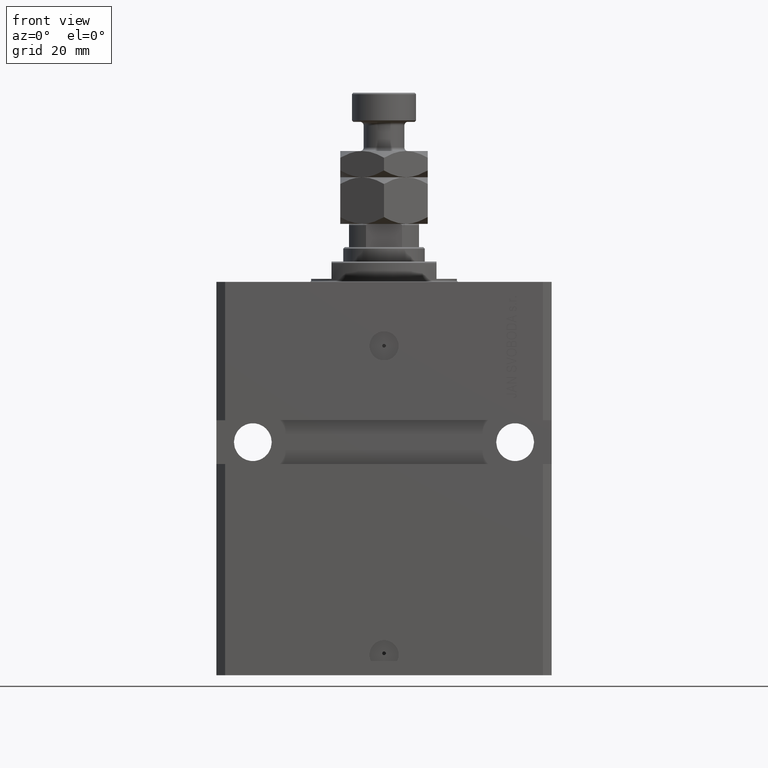
[diagram: clean part render]
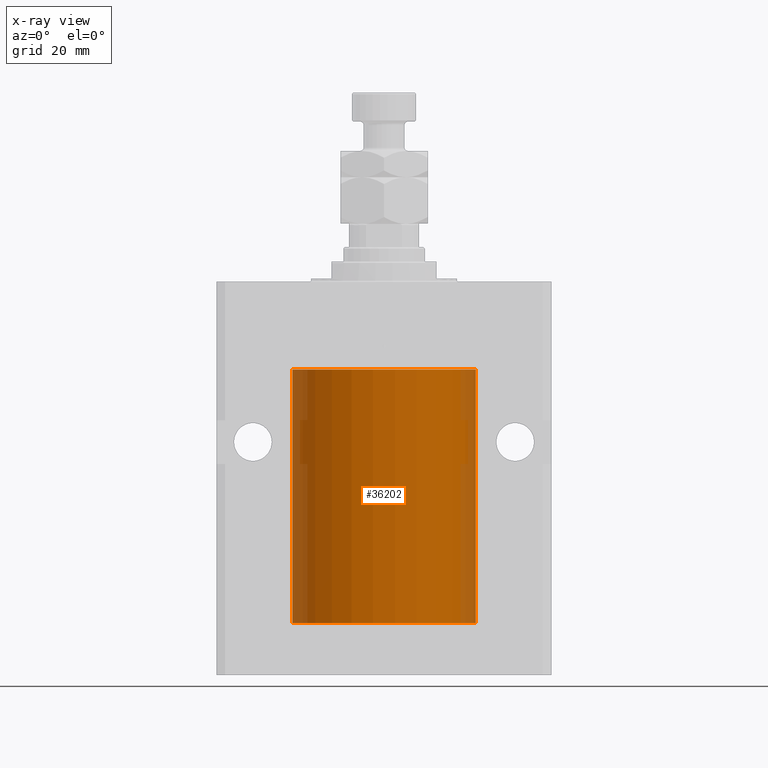
[diagram: x-ray — body ghosted, one internal face saturated and labeled with its STEP entity id]
A machine part, front view, then the same camera in x-ray: the body is ghosted and one INTERNAL B-rep face — a face not visible from any outside direction — is saturated and labeled: STEP entity #36202.
In plain terms, the highlighted cylindrical surface (partial cylindrical patch) has radius 31.5 mm, axis along (0, 0, 1).
Its self-contained STEP definition (entity closure, byte-faithful):
#95 = ORIENTED_EDGE ( 'NONE', *, *, #37725, .F. ) ;
#855 = ORIENTED_EDGE ( 'NONE', *, *, #18791, .T. ) ;
#1590 = FACE_OUTER_BOUND ( 'NONE', #24183, .T. ) ;
#2655 = VERTEX_POINT ( 'NONE', #16395 ) ;
#2991 = DIRECTION ( 'NONE',  ( 1.000000000000000000, 0.000000000000000000, 0.000000000000000000 ) ) ;
#3686 = CARTESIAN_POINT ( 'NONE',  ( 31.50000000000000000, -0.1632157801386601437, -113.3749999999998579 ) ) ;
#3803 = CARTESIAN_POINT ( 'NONE',  ( -31.50000000000000000, -2.862469004324082213E-15, -113.3750000000000000 ) ) ;
#4932 = CARTESIAN_POINT ( 'NONE',  ( 0.000000000000000000, 0.000000000000000000, -117.0999999999999943 ) ) ;
#5471 = ORIENTED_EDGE ( 'NONE', *, *, #46019, .T. ) ;
#6813 = EDGE_CURVE ( 'NONE', #20796, #2655, #29551, .T. ) ;
#6851 = CARTESIAN_POINT ( 'NONE',  ( 0.000000000000000000, 0.000000000000000000, -117.0999999999999943 ) ) ;
#7036 = CARTESIAN_POINT ( 'NONE',  ( 31.49379899281761652, -0.6250000000000287548, -113.8350496352847756 ) ) ;
#7296 = CARTESIAN_POINT ( 'NONE',  ( 31.50000000000006395, 3.442404755096224483E-13, -113.3749999999967741 ) ) ;
#7523 = ORIENTED_EDGE ( 'NONE', *, *, #18968, .T. ) ;
#8175 = CARTESIAN_POINT ( 'NONE',  ( -31.50000000000006395, 3.480981129463732167E-13, -114.6250000000032401 ) ) ;
#9445 = B_SPLINE_CURVE_WITH_KNOTS ( 'NONE', 3,
 ( #7296, #3686, #35090, #42288, #7036, #27375 ),
 .UNSPECIFIED., .F., .F.,
 ( 4, 2, 4 ),
 ( 0.001954083649707730446, 0.002442753259884901558, 0.002931422870062072236 ),
 .UNSPECIFIED. ) ;
#10025 = ORIENTED_EDGE ( 'NONE', *, *, #14150, .F. ) ;
#11935 = EDGE_CURVE ( 'NONE', #35167, #21688, #19582, .T. ) ;
#12285 = CARTESIAN_POINT ( 'NONE',  ( -31.49379625064871391, -0.6251381781549172345, -113.8356839311847466 ) ) ;
#12673 = CARTESIAN_POINT ( 'NONE',  ( 31.50000000000000000, 0.000000000000000000, -117.0999999999999943 ) ) ;
#14150 = EDGE_CURVE ( 'NONE', #39040, #37073, #20312, .T. ) ;
#14771 = CARTESIAN_POINT ( 'NONE',  ( 31.50000000000000000, 0.000000000000000000, -117.0999999999999943 ) ) ;
#16365 = EDGE_CURVE ( 'NONE', #16954, #35852, #44561, .T. ) ;
#16395 = CARTESIAN_POINT ( 'NONE',  ( -31.50000000000000000, 3.857637417314162689E-15, -30.10000000000000142 ) ) ;
#16539 = CARTESIAN_POINT ( 'NONE',  ( 31.50000000000000000, -2.492939093807799249E-15, -114.6250000000000000 ) ) ;
#16727 = CARTESIAN_POINT ( 'NONE',  ( -31.50000000000000000, 3.857637417314162689E-15, -117.0999999999999943 ) ) ;
#16954 = VERTEX_POINT ( 'NONE', #50149 ) ;
#18212 = CARTESIAN_POINT ( 'NONE',  ( -31.50000000000000000, 3.857637417314162689E-15, -117.0999999999999943 ) ) ;
#18791 = EDGE_CURVE ( 'NONE', #23854, #37073, #29625, .T. ) ;
#18968 = EDGE_CURVE ( 'NONE', #2655, #35852, #28453, .T. ) ;
#19009 = CARTESIAN_POINT ( 'NONE',  ( -31.50000000000006395, 3.480981129463732167E-13, -114.6250000000032401 ) ) ;
#19517 = CARTESIAN_POINT ( 'NONE',  ( -31.49852099238383119, -0.3263081977449447946, -114.5574125724066619 ) ) ;
#19582 = LINE ( 'NONE', #16727, #22703 ) ;
#20312 = LINE ( 'NONE', #23924, #42492 ) ;
#20643 = DIRECTION ( 'NONE',  ( 1.000000000000000000, 0.000000000000000000, 0.000000000000000000 ) ) ;
#20796 = VERTEX_POINT ( 'NONE', #23116 ) ;
#21688 = VERTEX_POINT ( 'NONE', #19009 ) ;
#22703 = VECTOR ( 'NONE', #44486, 1000.000000000000000 ) ;
#23116 = CARTESIAN_POINT ( 'NONE',  ( -31.50000000000000000, -2.862469004324082213E-15, -113.3750000000000000 ) ) ;
#23630 = CARTESIAN_POINT ( 'NONE',  ( -31.49380174372966223, -0.6248613812773637921, -114.1653655539884369 ) ) ;
#23854 = VERTEX_POINT ( 'NONE', #47453 ) ;
#23924 = CARTESIAN_POINT ( 'NONE',  ( 31.50000000000000000, 0.000000000000000000, -117.0999999999999943 ) ) ;
#24183 = EDGE_LOOP ( 'NONE', ( #95, #31602, #5471, #47425, #7523, #46831, #31510, #855, #10025 ) ) ;
#25434 = DIRECTION ( 'NONE',  ( -0.000000000000000000, -0.000000000000000000, 1.000000000000000000 ) ) ;
#26981 = CARTESIAN_POINT ( 'NONE',  ( -31.50000000000000000, 3.857637417314162689E-15, -117.0999999999999943 ) ) ;
#26989 = CARTESIAN_POINT ( 'NONE',  ( -31.49528704891774211, -0.5569519313505083558, -114.3270938121662539 ) ) ;
#27149 = CARTESIAN_POINT ( 'NONE',  ( 31.49851597466318864, -0.3267811800504749065, -114.5571701479423297 ) ) ;
#27375 = CARTESIAN_POINT ( 'NONE',  ( 31.49379899281761652, -0.6250000000000288658, -114.0000000000000000 ) ) ;
#28453 = CIRCLE ( 'NONE', #44882, 31.50000000000000000 ) ;
#29551 = LINE ( 'NONE', #18212, #43957 ) ;
#29625 = B_SPLINE_CURVE_WITH_KNOTS ( 'NONE', 3,
 ( #34088, #45653, #46424, #27149, #34602, #49523 ),
 .UNSPECIFIED., .F., .F.,
 ( 4, 2, 4 ),
 ( 0.002931422870062072236, 0.003419574257808113277, 0.003907725645554154317 ),
 .UNSPECIFIED. ) ;
#31510 = ORIENTED_EDGE ( 'NONE', *, *, #50153, .T. ) ;
#31602 = ORIENTED_EDGE ( 'NONE', *, *, #11935, .T. ) ;
#32984 = DIRECTION ( 'NONE',  ( -0.000000000000000000, -0.000000000000000000, 1.000000000000000000 ) ) ;
#34088 = CARTESIAN_POINT ( 'NONE',  ( 31.49379899281761652, -0.6250000000000288658, -114.0000000000000000 ) ) ;
#34602 = CARTESIAN_POINT ( 'NONE',  ( 31.50000000000000000, -0.1650602271992127057, -114.6250000000000142 ) ) ;
#34957 = CARTESIAN_POINT ( 'NONE',  ( -31.49527619204366857, -0.5575625051463252158, -113.6738430774043564 ) ) ;
#35090 = CARTESIAN_POINT ( 'NONE',  ( 31.49851930977805381, -0.3264760966898029859, -113.4426595268314770 ) ) ;
#35117 = DIRECTION ( 'NONE',  ( 0.000000000000000000, 0.000000000000000000, 1.000000000000000000 ) ) ;
#35167 = VERTEX_POINT ( 'NONE', #26981 ) ;
#35848 = DIRECTION ( 'NONE',  ( -0.000000000000000000, -0.000000000000000000, 1.000000000000000000 ) ) ;
#35852 = VERTEX_POINT ( 'NONE', #49238 ) ;
#36025 = VECTOR ( 'NONE', #35848, 1000.000000000000000 ) ;
#36202 = ADVANCED_FACE ( 'NONE', ( #1590 ), #40198, .F. ) ;
#37073 = VERTEX_POINT ( 'NONE', #16539 ) ;
#37725 = EDGE_CURVE ( 'NONE', #35167, #39040, #43816, .T. ) ;
#38837 = AXIS2_PLACEMENT_3D ( 'NONE', #4932, #32984, #20643 ) ;
#39040 = VERTEX_POINT ( 'NONE', #14771 ) ;
#39075 = CARTESIAN_POINT ( 'NONE',  ( -31.49851430197701063, -0.3269482044720602998, -113.4429011246694188 ) ) ;
#40198 = CYLINDRICAL_SURFACE ( 'NONE', #38837, 31.50000000000000000 ) ;
#40372 = DIRECTION ( 'NONE',  ( -0.000000000000000000, -0.000000000000000000, 1.000000000000000000 ) ) ;
#42288 = CARTESIAN_POINT ( 'NONE',  ( 31.49528358446202603, -0.5571510427948113131, -113.6732007340060449 ) ) ;
#42492 = VECTOR ( 'NONE', #40372, 1000.000000000000000 ) ;
#43169 = CARTESIAN_POINT ( 'NONE',  ( -31.50000000000000000, -0.1631292369235416984, -114.6250000000001563 ) ) ;
#43578 = CARTESIAN_POINT ( 'NONE',  ( 0.000000000000000000, 0.000000000000000000, -30.10000000000000142 ) ) ;
#43816 = CIRCLE ( 'NONE', #47914, 31.50000000000000000 ) ;
#43957 = VECTOR ( 'NONE', #25434, 1000.000000000000000 ) ;
#44486 = DIRECTION ( 'NONE',  ( -0.000000000000000000, -0.000000000000000000, 1.000000000000000000 ) ) ;
#44561 = LINE ( 'NONE', #12673, #36025 ) ;
#44882 = AXIS2_PLACEMENT_3D ( 'NONE', #43578, #35117, #47177 ) ;
#45653 = CARTESIAN_POINT ( 'NONE',  ( 31.49379899281760942, -0.6250000000000288658, -114.1647754387995661 ) ) ;
#45949 = DIRECTION ( 'NONE',  ( 0.000000000000000000, 0.000000000000000000, 1.000000000000000000 ) ) ;
#46019 = EDGE_CURVE ( 'NONE', #21688, #20796, #47183, .T. ) ;
#46424 = CARTESIAN_POINT ( 'NONE',  ( 31.49527967292564057, -0.5573624224366642288, -114.3264531259596168 ) ) ;
#46831 = ORIENTED_EDGE ( 'NONE', *, *, #16365, .F. ) ;
#47177 = DIRECTION ( 'NONE',  ( 1.000000000000000000, 0.000000000000000000, 0.000000000000000000 ) ) ;
#47183 = B_SPLINE_CURVE_WITH_KNOTS ( 'NONE', 3,
 ( #8175, #43169, #19517, #26989, #23630, #12285, #34957, #39075, #50385, #3803 ),
 .UNSPECIFIED., .F., .F.,
 ( 4, 2, 2, 2, 4 ),
 ( 0.001954083649707762538, 0.002442494148669354520, 0.002930904647630946935, 0.003419315146592538917, 0.003907725645554130899 ),
 .UNSPECIFIED. ) ;
#47425 = ORIENTED_EDGE ( 'NONE', *, *, #6813, .T. ) ;
#47453 = CARTESIAN_POINT ( 'NONE',  ( 31.49379899281761652, -0.6250000000000288658, -114.0000000000000000 ) ) ;
#47914 = AXIS2_PLACEMENT_3D ( 'NONE', #6851, #45949, #2991 ) ;
#49238 = CARTESIAN_POINT ( 'NONE',  ( 31.50000000000000000, 0.000000000000000000, -30.10000000000000142 ) ) ;
#49523 = CARTESIAN_POINT ( 'NONE',  ( 31.50000000000000000, -2.492939093807799249E-15, -114.6250000000000000 ) ) ;
#50149 = CARTESIAN_POINT ( 'NONE',  ( 31.50000000000006395, 3.442404755096224483E-13, -113.3749999999967741 ) ) ;
#50153 = EDGE_CURVE ( 'NONE', #16954, #23854, #9445, .T. ) ;
#50385 = CARTESIAN_POINT ( 'NONE',  ( -31.49999999999999289, -0.1651478413229920950, -113.3749999999999858 ) ) ;